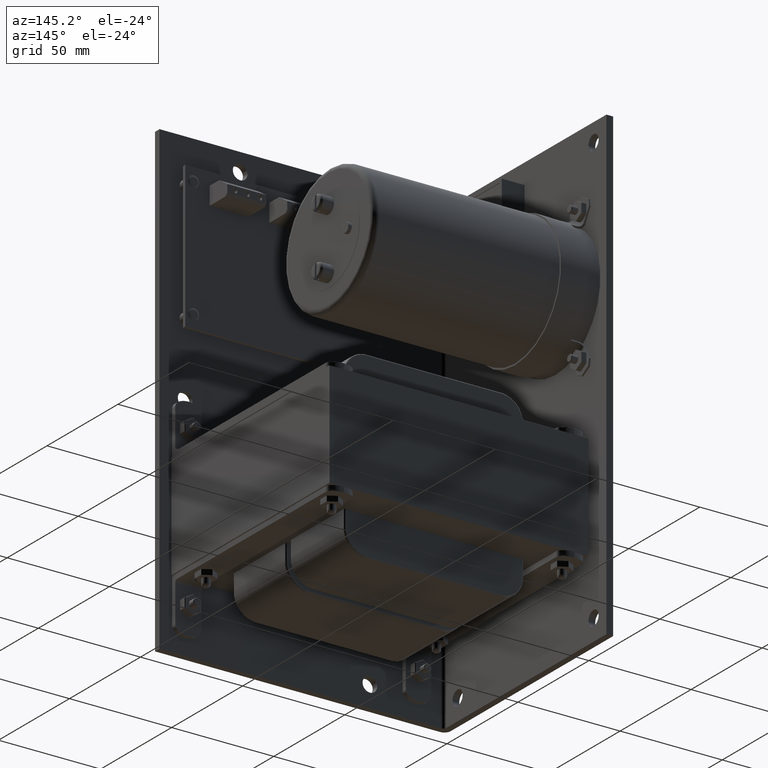
[diagram: clean part render]
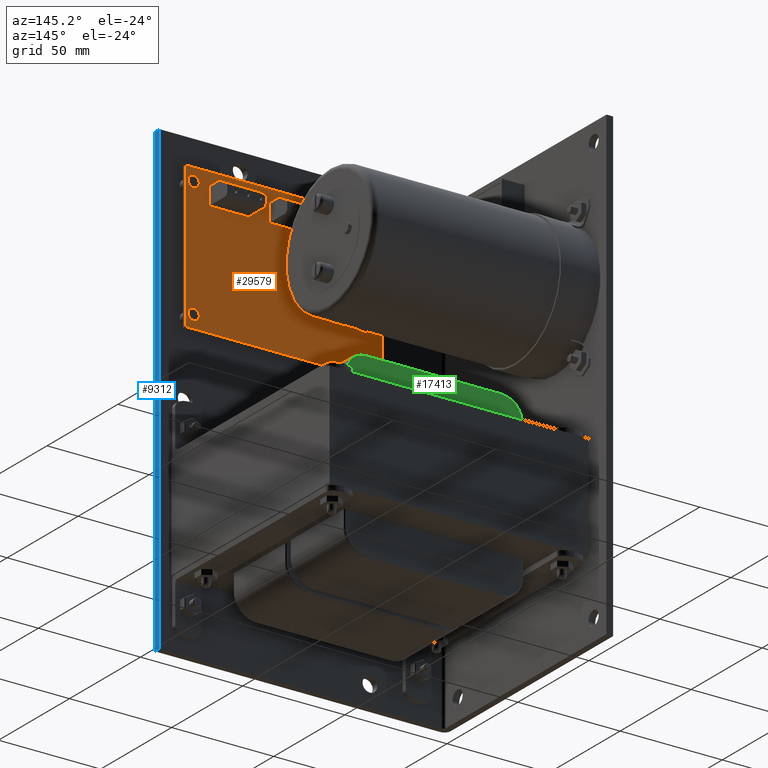
[diagram: same view with three faces highlighted in distinct colors, each labeled with its STEP entity id]
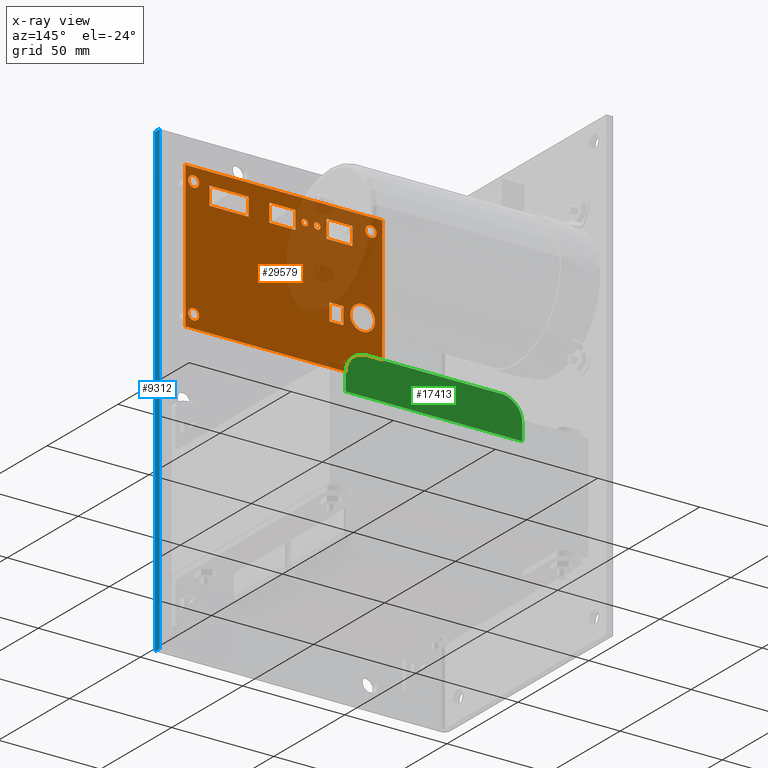
[diagram: x-ray of the same camera — body ghosted, the three highlighted faces saturated]
A machine part, auxiliary view with three faces highlighted in distinct colors.
The next image is the same camera in x-ray (body ghosted, the three faces saturated) — at least one of them is partly hidden behind the body in this view.
Their STEP definitions:

[orange] entity #29579 — the highlighted planar face has unit normal (0, -1, 0).
#168 = VECTOR ( 'NONE', #3664, 39.37007874015748100 ) ;
#216 = EDGE_CURVE ( 'NONE', #23354, #17459, #22473, .T. ) ;
#233 = CARTESIAN_POINT ( 'NONE',  ( 2.567108000741215700, 0.3562500000000000100, 3.289144323610568400 ) ) ;
#241 = CARTESIAN_POINT ( 'NONE',  ( 2.499454793884987100, 0.3562500000000000700, 2.189873202848102700 ) ) ;
#444 = CARTESIAN_POINT ( 'NONE',  ( 5.126889999999986200, 0.3562500000000000100, 3.630000000000000300 ) ) ;
#509 = FACE_BOUND ( 'NONE', #17495, .T. ) ;
#732 = CIRCLE ( 'NONE', #17499, 0.2403210120384025900 ) ;
#738 = CARTESIAN_POINT ( 'NONE',  ( 5.126889999999986200, 0.3562500000000000100, 1.330000000000000300 ) ) ;
#750 = ORIENTED_EDGE ( 'NONE', *, *, #15164, .F. ) ;
#814 = EDGE_LOOP ( 'NONE', ( #14510, #21212, #28279, #30144 ) ) ;
#828 = EDGE_CURVE ( 'NONE', #20476, #13117, #20589, .T. ) ;
#842 = CARTESIAN_POINT ( 'NONE',  ( 2.499454793884987100, 0.3562500000000000100, 2.202373202848102500 ) ) ;
#864 = DIRECTION ( 'NONE',  ( 1.000000000000000000, 0.0000000000000000000, 0.0000000000000000000 ) ) ;
#893 = CIRCLE ( 'NONE', #22451, 0.01249999999999993500 ) ;
#897 = ORIENTED_EDGE ( 'NONE', *, *, #25191, .F. ) ;
#973 = VERTEX_POINT ( 'NONE', #17518 ) ;
#1085 = EDGE_CURVE ( 'NONE', #23833, #8185, #2347, .T. ) ;
#1155 = CARTESIAN_POINT ( 'NONE',  ( 4.820850972474547200, 0.3562500000000000100, 3.635920434602855500 ) ) ;
#1189 = DIRECTION ( 'NONE',  ( 0.0000000000000000000, 0.0000000000000000000, 1.000000000000000000 ) ) ;
#1247 = VECTOR ( 'NONE', #13639, 39.37007874015748100 ) ;
#1420 = CIRCLE ( 'NONE', #23116, 0.06126911402117980700 ) ;
#1451 = DIRECTION ( 'NONE',  ( 0.0000000000000000000, 0.0000000000000000000, 1.000000000000000000 ) ) ;
#1540 = VERTEX_POINT ( 'NONE', #20874 ) ;
#1602 = CARTESIAN_POINT ( 'NONE',  ( 5.290116121888329000, 0.3562500000000000100, 1.080000000000013200 ) ) ;
#1756 = AXIS2_PLACEMENT_3D ( 'NONE', #11828, #14503, #9560 ) ;
#1871 = CARTESIAN_POINT ( 'NONE',  ( 5.126889999999986200, 0.3562500000000000100, 3.630000000000000300 ) ) ;
#2021 = VERTEX_POINT ( 'NONE', #18220 ) ;
#2115 = EDGE_LOOP ( 'NONE', ( #5764, #11329, #23982, #11856, #13220, #16406, #16074, #3858 ) ) ;
#2205 = EDGE_CURVE ( 'NONE', #9322, #4351, #11475, .T. ) ;
#2283 = VERTEX_POINT ( 'NONE', #5282 ) ;
#2341 = FACE_BOUND ( 'NONE', #2115, .T. ) ;
#2347 = CIRCLE ( 'NONE', #16882, 0.1065000000000017200 ) ;
#2394 = DIRECTION ( 'NONE',  ( 0.0000000000000000000, -1.000000000000000000, 0.0000000000000000000 ) ) ;
#2457 = EDGE_LOOP ( 'NONE', ( #27822, #21044 ) ) ;
#2607 = CIRCLE ( 'NONE', #17798, 0.1065000000000017200 ) ;
#2628 = DIRECTION ( 'NONE',  ( 0.0000000000000000000, -1.000000000000000000, 0.0000000000000000000 ) ) ;
#2684 = LINE ( 'NONE', #17862, #20898 ) ;
#2772 = EDGE_CURVE ( 'NONE', #8289, #16735, #11407, .T. ) ;
#2793 = DIRECTION ( 'NONE',  ( 0.0000000000000000000, 0.0000000000000000000, -1.000000000000000000 ) ) ;
#2822 = CARTESIAN_POINT ( 'NONE',  ( 5.290116121888329000, 0.3562500000000000100, 1.080000000000013200 ) ) ;
#2856 = CIRCLE ( 'NONE', #29399, 0.1065000000000022600 ) ;
#3000 = VERTEX_POINT ( 'NONE', #17538 ) ;
#3088 = DIRECTION ( 'NONE',  ( -0.0000000000000000000, 1.000000000000000000, -0.0000000000000000000 ) ) ;
#3273 = EDGE_LOOP ( 'NONE', ( #19516, #9786 ) ) ;
#3312 = VECTOR ( 'NONE', #16762, 39.37007874015748100 ) ;
#3448 = FACE_BOUND ( 'NONE', #17003, .T. ) ;
#3461 = VECTOR ( 'NONE', #29570, 39.37007874015748100 ) ;
#3479 = ORIENTED_EDGE ( 'NONE', *, *, #16588, .F. ) ;
#3659 = EDGE_LOOP ( 'NONE', ( #19423, #897, #29071, #23502 ) ) ;
#3664 = DIRECTION ( 'NONE',  ( 6.302274942405048000E-015, 0.0000000000000000000, 1.000000000000000000 ) ) ;
#3727 = CARTESIAN_POINT ( 'NONE',  ( 2.243411818852810500, 0.3562500000000000100, 1.873179531436004200 ) ) ;
#3740 = LINE ( 'NONE', #29790, #7739 ) ;
#3768 = CARTESIAN_POINT ( 'NONE',  ( 3.167108000741191400, 0.3562500000000000100, -1.995998539296175500E-014 ) ) ;
#3858 = ORIENTED_EDGE ( 'NONE', *, *, #20272, .T. ) ;
#4002 = LINE ( 'NONE', #21353, #3312 ) ;
#4062 = DIRECTION ( 'NONE',  ( 0.0000000000000000000, 0.0000000000000000000, 1.000000000000000000 ) ) ;
#4151 = VERTEX_POINT ( 'NONE', #1602 ) ;
#4226 = AXIS2_PLACEMENT_3D ( 'NONE', #9223, #2394, #14067 ) ;
#4237 = DIRECTION ( 'NONE',  ( 0.0000000000000000000, 0.0000000000000000000, 1.000000000000000000 ) ) ;
#4305 = DIRECTION ( 'NONE',  ( 1.000000000000000000, 0.0000000000000000000, -3.174556836678934100E-015 ) ) ;
#4351 = VERTEX_POINT ( 'NONE', #27893 ) ;
#4404 = CARTESIAN_POINT ( 'NONE',  ( 4.067108000741213500, 0.3562500000000000100, 3.635920434602857700 ) ) ;
#4451 = DIRECTION ( 'NONE',  ( -0.0000000000000000000, -1.000000000000000000, 0.0000000000000000000 ) ) ;
#4737 = CARTESIAN_POINT ( 'NONE',  ( 5.126889999999986200, 0.3562500000000000100, 1.223499999999998000 ) ) ;
#4916 = CARTESIAN_POINT ( 'NONE',  ( 1.490116121888331000, 0.3562500000000000100, 1.080000000000013200 ) ) ;
#4985 = ORIENTED_EDGE ( 'NONE', *, *, #5076, .T. ) ;
#5076 = EDGE_CURVE ( 'NONE', #20987, #18467, #10486, .T. ) ;
#5147 = DIRECTION ( 'NONE',  ( -0.0000000000000000000, 1.000000000000000000, -0.0000000000000000000 ) ) ;
#5210 = ORIENTED_EDGE ( 'NONE', *, *, #11740, .T. ) ;
#5226 = CARTESIAN_POINT ( 'NONE',  ( 2.747108000741215000, 0.3562500000000000100, 3.401263265085536300 ) ) ;
#5282 = CARTESIAN_POINT ( 'NONE',  ( 5.290116121888329000, 0.3562500000000000100, 3.880000000000011400 ) ) ;
#5339 = AXIS2_PLACEMENT_3D ( 'NONE', #25099, #4451, #20725 ) ;
#5354 = LINE ( 'NONE', #2822, #29328 ) ;
#5396 = VERTEX_POINT ( 'NONE', #19142 ) ;
#5510 = LINE ( 'NONE', #7024, #27228 ) ;
#5764 = ORIENTED_EDGE ( 'NONE', *, *, #10665, .F. ) ;
#5887 = CARTESIAN_POINT ( 'NONE',  ( 4.820850972474524100, 0.3562500000000000100, -3.038232828489520000E-014 ) ) ;
#5904 = AXIS2_PLACEMENT_3D ( 'NONE', #30114, #21066, #16300 ) ;
#6046 = CARTESIAN_POINT ( 'NONE',  ( 2.747108000741215000, 0.3562500000000000100, 3.462532379106714900 ) ) ;
#6237 = CARTESIAN_POINT ( 'NONE',  ( 2.747108000741215000, 0.3562500000000000100, 3.523801493127893400 ) ) ;
#6529 = CARTESIAN_POINT ( 'NONE',  ( 2.243411818852810500, 0.3562500000000000100, 2.202373202848102500 ) ) ;
#6672 = EDGE_CURVE ( 'NONE', #18467, #20987, #9948, .T. ) ;
#6777 = CARTESIAN_POINT ( 'NONE',  ( 2.511954793884986900, 0.3562500000000000100, 2.189873202848102700 ) ) ;
#6849 = CIRCLE ( 'NONE', #4226, 0.01249999999999993500 ) ;
#6877 = VECTOR ( 'NONE', #12013, 39.37007874015748100 ) ;
#7024 = CARTESIAN_POINT ( 'NONE',  ( 1.109417407430052700E-014, 0.3562500000000000100, 3.289144323610576800 ) ) ;
#7113 = EDGE_CURVE ( 'NONE', #8185, #23833, #2607, .T. ) ;
#7332 = ORIENTED_EDGE ( 'NONE', *, *, #14700, .T. ) ;
#7739 = VECTOR ( 'NONE', #13438, 39.37007874015748100 ) ;
#8097 = LINE ( 'NONE', #14678, #23366 ) ;
#8123 = DIRECTION ( 'NONE',  ( 0.0000000000000000000, -1.000000000000000000, 0.0000000000000000000 ) ) ;
#8185 = VERTEX_POINT ( 'NONE', #20326 ) ;
#8289 = VERTEX_POINT ( 'NONE', #29149 ) ;
#8527 = LINE ( 'NONE', #3727, #10760 ) ;
#8689 = ORIENTED_EDGE ( 'NONE', *, *, #13391, .T. ) ;
#9223 = CARTESIAN_POINT ( 'NONE',  ( 2.255911818852810700, 0.3562500000000000700, 1.885679531436004000 ) ) ;
#9270 = FACE_BOUND ( 'NONE', #814, .T. ) ;
#9322 = VERTEX_POINT ( 'NONE', #17434 ) ;
#9543 = EDGE_CURVE ( 'NONE', #14572, #21831, #3740, .T. ) ;
#9560 = DIRECTION ( 'NONE',  ( 0.0000000000000000000, 0.0000000000000000000, -1.000000000000000000 ) ) ;
#9643 = CARTESIAN_POINT ( 'NONE',  ( 1.870870562920248900, 0.3562500000000000700, 2.094269394781242100 ) ) ;
#9654 = FACE_BOUND ( 'NONE', #25899, .T. ) ;
#9702 = CIRCLE ( 'NONE', #23156, 0.06126911402117980700 ) ;
#9711 = AXIS2_PLACEMENT_3D ( 'NONE', #9643, #5147, #21716 ) ;
#9730 = CIRCLE ( 'NONE', #14566, 0.1065000000000022600 ) ;
#9786 = ORIENTED_EDGE ( 'NONE', *, *, #11528, .F. ) ;
#9948 = CIRCLE ( 'NONE', #5339, 0.06126911402117871800 ) ;
#10026 = VECTOR ( 'NONE', #24482, 39.37007874015748100 ) ;
#10044 = DIRECTION ( 'NONE',  ( -0.0000000000000000000, 0.0000000000000000000, 1.000000000000000000 ) ) ;
#10261 = LINE ( 'NONE', #22062, #25844 ) ;
#10392 = ORIENTED_EDGE ( 'NONE', *, *, #21760, .T. ) ;
#10406 = FACE_OUTER_BOUND ( 'NONE', #13384, .T. ) ;
#10407 = VERTEX_POINT ( 'NONE', #15883 ) ;
#10486 = CIRCLE ( 'NONE', #11699, 0.06126911402117871800 ) ;
#10529 = CARTESIAN_POINT ( 'NONE',  ( 3.667108000741191400, 0.3562500000000000100, -2.311112286416428200E-014 ) ) ;
#10544 = VERTEX_POINT ( 'NONE', #18236 ) ;
#10582 = EDGE_CURVE ( 'NONE', #12309, #10407, #5510, .T. ) ;
#10585 = CARTESIAN_POINT ( 'NONE',  ( 1.870870562920248900, 0.3562500000000000700, 1.853948382742839600 ) ) ;
#10662 = CARTESIAN_POINT ( 'NONE',  ( 1.109417407430052700E-014, 0.3562500000000000100, 3.289144323610576800 ) ) ;
#10665 = EDGE_CURVE ( 'NONE', #23354, #26648, #4002, .T. ) ;
#10725 = CARTESIAN_POINT ( 'NONE',  ( 0.0000000000000000000, 0.3562500000000000100, 0.0000000000000000000 ) ) ;
#10758 = FACE_BOUND ( 'NONE', #22270, .T. ) ;
#10760 = VECTOR ( 'NONE', #4237, 39.37007874015748100 ) ;
#10775 = CARTESIAN_POINT ( 'NONE',  ( 1.710688108957310900, 0.3562500000000000100, 3.630000000000000300 ) ) ;
#10866 = DIRECTION ( 'NONE',  ( 0.0000000000000000000, 0.0000000000000000000, -1.000000000000000000 ) ) ;
#11062 = DIRECTION ( 'NONE',  ( 0.0000000000000000000, 0.0000000000000000000, -1.000000000000000000 ) ) ;
#11074 = VECTOR ( 'NONE', #11247, 39.37007874015748100 ) ;
#11231 = LINE ( 'NONE', #10662, #14447 ) ;
#11247 = DIRECTION ( 'NONE',  ( 1.000000000000000000, 0.0000000000000000000, 0.0000000000000000000 ) ) ;
#11329 = ORIENTED_EDGE ( 'NONE', *, *, #216, .T. ) ;
#11344 = LINE ( 'NONE', #20775, #16391 ) ;
#11392 = CARTESIAN_POINT ( 'NONE',  ( 5.126889999999986200, 0.3562500000000000100, 1.436500000000002600 ) ) ;
#11407 = CIRCLE ( 'NONE', #19281, 0.1065000000000022600 ) ;
#11475 = CIRCLE ( 'NONE', #17715, 0.01249999999999993500 ) ;
#11528 = EDGE_CURVE ( 'NONE', #16735, #8289, #2856, .T. ) ;
#11531 = CARTESIAN_POINT ( 'NONE',  ( 1.870870562920248900, 0.3562500000000000700, 2.334590406819645000 ) ) ;
#11575 = DIRECTION ( 'NONE',  ( 9.756599977372373600E-017, 0.0000000000000000000, 1.000000000000000000 ) ) ;
#11699 = AXIS2_PLACEMENT_3D ( 'NONE', #6046, #24641, #1451 ) ;
#11713 = CARTESIAN_POINT ( 'NONE',  ( 5.126889999999986200, 0.3562500000000000100, 3.736500000000003000 ) ) ;
#11740 = EDGE_CURVE ( 'NONE', #23159, #3000, #21038, .T. ) ;
#11763 = CARTESIAN_POINT ( 'NONE',  ( 3.167108000741213100, 0.3562500000000000100, 3.635920434602860900 ) ) ;
#11828 = CARTESIAN_POINT ( 'NONE',  ( 5.126889999999986200, 0.3562500000000000100, 1.330000000000000300 ) ) ;
#11856 = ORIENTED_EDGE ( 'NONE', *, *, #2205, .T. ) ;
#12013 = DIRECTION ( 'NONE',  ( -1.000000000000000000, -0.0000000000000000000, -0.0000000000000000000 ) ) ;
#12057 = VERTEX_POINT ( 'NONE', #29385 ) ;
#12309 = VERTEX_POINT ( 'NONE', #28617 ) ;
#12440 = VERTEX_POINT ( 'NONE', #15013 ) ;
#12620 = ORIENTED_EDGE ( 'NONE', *, *, #15944, .F. ) ;
#12809 = DIRECTION ( 'NONE',  ( -0.0000000000000000000, 1.000000000000000000, -0.0000000000000000000 ) ) ;
#12884 = CARTESIAN_POINT ( 'NONE',  ( 2.987108000741213400, 0.3562500000000000100, 3.462532379106714900 ) ) ;
#13007 = DIRECTION ( 'NONE',  ( 0.0000000000000000000, 0.0000000000000000000, -1.000000000000000000 ) ) ;
#13117 = VERTEX_POINT ( 'NONE', #11531 ) ;
#13220 = ORIENTED_EDGE ( 'NONE', *, *, #13994, .F. ) ;
#13241 = EDGE_CURVE ( 'NONE', #4151, #2283, #5354, .T. ) ;
#13356 = DIRECTION ( 'NONE',  ( -0.0000000000000000000, 1.000000000000000000, -0.0000000000000000000 ) ) ;
#13384 = EDGE_LOOP ( 'NONE', ( #3479, #5210, #10392, #19519 ) ) ;
#13391 = EDGE_CURVE ( 'NONE', #12057, #28193, #9702, .T. ) ;
#13438 = DIRECTION ( 'NONE',  ( 1.000000000000000000, 0.0000000000000000000, -3.174556836678934100E-015 ) ) ;
#13477 = CARTESIAN_POINT ( 'NONE',  ( 2.987108000741213400, 0.3562500000000000100, 3.523801493127894700 ) ) ;
#13579 = DIRECTION ( 'NONE',  ( 6.302274942405066900E-015, 0.0000000000000000000, 1.000000000000000000 ) ) ;
#13639 = DIRECTION ( 'NONE',  ( -1.000000000000000000, 0.0000000000000000000, 3.372966638971370200E-015 ) ) ;
#13829 = VERTEX_POINT ( 'NONE', #15407 ) ;
#13898 = EDGE_CURVE ( 'NONE', #10407, #14572, #2684, .T. ) ;
#13944 = AXIS2_PLACEMENT_3D ( 'NONE', #241, #21487, #17319 ) ;
#13961 = FACE_BOUND ( 'NONE', #3659, .T. ) ;
#13994 = EDGE_CURVE ( 'NONE', #13829, #4351, #8527, .T. ) ;
#14036 = VERTEX_POINT ( 'NONE', #27349 ) ;
#14067 = DIRECTION ( 'NONE',  ( 0.0000000000000000000, 0.0000000000000000000, -1.000000000000000000 ) ) ;
#14289 = VERTEX_POINT ( 'NONE', #21499 ) ;
#14309 = DIRECTION ( 'NONE',  ( 0.0000000000000000000, 0.0000000000000000000, 1.000000000000000000 ) ) ;
#14323 = ORIENTED_EDGE ( 'NONE', *, *, #15815, .F. ) ;
#14447 = VECTOR ( 'NONE', #17546, 39.37007874015748100 ) ;
#14481 = EDGE_CURVE ( 'NONE', #9322, #17459, #18360, .T. ) ;
#14503 = DIRECTION ( 'NONE',  ( -0.0000000000000000000, 1.000000000000000000, -0.0000000000000000000 ) ) ;
#14510 = ORIENTED_EDGE ( 'NONE', *, *, #21101, .F. ) ;
#14566 = AXIS2_PLACEMENT_3D ( 'NONE', #738, #3088, #23838 ) ;
#14572 = VERTEX_POINT ( 'NONE', #4404 ) ;
#14678 = CARTESIAN_POINT ( 'NONE',  ( 1.490116121888331200, 0.3562500000000000100, 3.880000000000011400 ) ) ;
#14700 = EDGE_CURVE ( 'NONE', #5396, #12440, #17589, .T. ) ;
#14836 = DIRECTION ( 'NONE',  ( 0.0000000000000000000, 0.0000000000000000000, -1.000000000000000000 ) ) ;
#15013 = CARTESIAN_POINT ( 'NONE',  ( 3.667108000741214500, 0.3562500000000000100, 3.635920434602859100 ) ) ;
#15115 = DIRECTION ( 'NONE',  ( -0.0000000000000000000, -1.000000000000000000, 0.0000000000000000000 ) ) ;
#15164 = EDGE_CURVE ( 'NONE', #21531, #23348, #28069, .T. ) ;
#15244 = ORIENTED_EDGE ( 'NONE', *, *, #6672, .T. ) ;
#15407 = CARTESIAN_POINT ( 'NONE',  ( 2.243411818852810500, 0.3562500000000000100, 1.885679531436004000 ) ) ;
#15525 = CARTESIAN_POINT ( 'NONE',  ( 1.490116121888331000, 0.3562500000000000100, 1.080000000000013200 ) ) ;
#15560 = DIRECTION ( 'NONE',  ( -0.0000000000000000000, 1.000000000000000000, -0.0000000000000000000 ) ) ;
#15815 = EDGE_CURVE ( 'NONE', #13117, #20476, #732, .T. ) ;
#15883 = CARTESIAN_POINT ( 'NONE',  ( 4.067108000741212600, 0.3562500000000000100, 3.289144323610563500 ) ) ;
#15944 = EDGE_CURVE ( 'NONE', #22145, #22149, #16557, .T. ) ;
#16074 = ORIENTED_EDGE ( 'NONE', *, *, #27826, .F. ) ;
#16087 = ORIENTED_EDGE ( 'NONE', *, *, #29191, .F. ) ;
#16188 = LINE ( 'NONE', #5887, #10026 ) ;
#16300 = DIRECTION ( 'NONE',  ( 0.0000000000000000000, 0.0000000000000000000, -1.000000000000000000 ) ) ;
#16333 = CARTESIAN_POINT ( 'NONE',  ( 2.567108000741193900, 0.3562500000000000100, -1.617862042751879400E-014 ) ) ;
#16391 = VECTOR ( 'NONE', #4305, 39.37007874015748100 ) ;
#16406 = ORIENTED_EDGE ( 'NONE', *, *, #23827, .T. ) ;
#16557 = LINE ( 'NONE', #3768, #168 ) ;
#16588 = EDGE_CURVE ( 'NONE', #23159, #4151, #10261, .T. ) ;
#16716 = DIRECTION ( 'NONE',  ( -0.0000000000000000000, 1.000000000000000000, -0.0000000000000000000 ) ) ;
#16721 = ORIENTED_EDGE ( 'NONE', *, *, #19872, .F. ) ;
#16735 = VERTEX_POINT ( 'NONE', #11713 ) ;
#16762 = DIRECTION ( 'NONE',  ( -0.0000000000000000000, -0.0000000000000000000, -1.000000000000000000 ) ) ;
#16882 = AXIS2_PLACEMENT_3D ( 'NONE', #18018, #15560, #18330 ) ;
#16974 = ORIENTED_EDGE ( 'NONE', *, *, #28513, .F. ) ;
#17003 = EDGE_LOOP ( 'NONE', ( #23262, #7332, #16721, #12620 ) ) ;
#17241 = LINE ( 'NONE', #20862, #1247 ) ;
#17273 = LINE ( 'NONE', #16333, #26684 ) ;
#17319 = DIRECTION ( 'NONE',  ( 0.0000000000000000000, 0.0000000000000000000, -1.000000000000000000 ) ) ;
#17409 = DIRECTION ( 'NONE',  ( 6.302274942405048000E-015, 0.0000000000000000000, 1.000000000000000000 ) ) ;
#17434 = CARTESIAN_POINT ( 'NONE',  ( 2.255911818852810700, 0.3562500000000000100, 2.202373202848102500 ) ) ;
#17459 = VERTEX_POINT ( 'NONE', #842 ) ;
#17495 = EDGE_LOOP ( 'NONE', ( #29240, #750 ) ) ;
#17499 = AXIS2_PLACEMENT_3D ( 'NONE', #28862, #28754, #14836 ) ;
#17518 = CARTESIAN_POINT ( 'NONE',  ( 2.067108000000000600, 0.3562500000000000100, 3.289144323610569700 ) ) ;
#17538 = CARTESIAN_POINT ( 'NONE',  ( 1.490116121888331200, 0.3562500000000000100, 3.880000000000011400 ) ) ;
#17546 = DIRECTION ( 'NONE',  ( -1.000000000000000000, 0.0000000000000000000, 3.372966638971370200E-015 ) ) ;
#17589 = LINE ( 'NONE', #10529, #29203 ) ;
#17652 = LINE ( 'NONE', #20542, #3461 ) ;
#17715 = AXIS2_PLACEMENT_3D ( 'NONE', #27810, #2628, #21235 ) ;
#17798 = AXIS2_PLACEMENT_3D ( 'NONE', #10775, #13356, #10866 ) ;
#17862 = CARTESIAN_POINT ( 'NONE',  ( 4.067108000741191300, 0.3562500000000000100, -2.563203284112629800E-014 ) ) ;
#17901 = DIRECTION ( 'NONE',  ( 0.0000000000000000000, -0.0000000000000000000, -1.000000000000000000 ) ) ;
#18018 = CARTESIAN_POINT ( 'NONE',  ( 1.710688108957310900, 0.3562500000000000100, 3.630000000000000300 ) ) ;
#18054 = VERTEX_POINT ( 'NONE', #28744 ) ;
#18159 = DIRECTION ( 'NONE',  ( -0.0000000000000000000, 1.000000000000000000, -0.0000000000000000000 ) ) ;
#18220 = CARTESIAN_POINT ( 'NONE',  ( 1.710688108957310900, 0.3562500000000000100, 1.436500000000001400 ) ) ;
#18236 = CARTESIAN_POINT ( 'NONE',  ( 2.567108000741215700, 0.3562500000000000100, 3.635920434602862600 ) ) ;
#18330 = DIRECTION ( 'NONE',  ( 0.0000000000000000000, 0.0000000000000000000, -1.000000000000000000 ) ) ;
#18360 = LINE ( 'NONE', #6529, #11074 ) ;
#18467 = VERTEX_POINT ( 'NONE', #5226 ) ;
#18537 = DIRECTION ( 'NONE',  ( -1.000000000000000000, 0.0000000000000000000, 3.372966638971370200E-015 ) ) ;
#19109 = EDGE_CURVE ( 'NONE', #23348, #21531, #9730, .T. ) ;
#19133 = CIRCLE ( 'NONE', #5904, 0.1065000000000011800 ) ;
#19142 = CARTESIAN_POINT ( 'NONE',  ( 3.667108000741213100, 0.3562500000000000100, 3.289144323610564400 ) ) ;
#19167 = CIRCLE ( 'NONE', #24392, 0.1065000000000011800 ) ;
#19261 = LINE ( 'NONE', #25799, #6877 ) ;
#19281 = AXIS2_PLACEMENT_3D ( 'NONE', #444, #16716, #2793 ) ;
#19423 = ORIENTED_EDGE ( 'NONE', *, *, #10582, .F. ) ;
#19443 = DIRECTION ( 'NONE',  ( 1.000000000000000000, 0.0000000000000000000, 0.0000000000000000000 ) ) ;
#19516 = ORIENTED_EDGE ( 'NONE', *, *, #2772, .F. ) ;
#19519 = ORIENTED_EDGE ( 'NONE', *, *, #13241, .F. ) ;
#19872 = EDGE_CURVE ( 'NONE', #22149, #12440, #17652, .T. ) ;
#19946 = CARTESIAN_POINT ( 'NONE',  ( 1.710688108957310900, 0.3562500000000000100, 1.330000000000000300 ) ) ;
#19952 = DIRECTION ( 'NONE',  ( 0.0000000000000000000, -1.000000000000000000, 0.0000000000000000000 ) ) ;
#20153 = ORIENTED_EDGE ( 'NONE', *, *, #828, .F. ) ;
#20272 = EDGE_CURVE ( 'NONE', #14036, #26648, #893, .T. ) ;
#20326 = CARTESIAN_POINT ( 'NONE',  ( 1.710688108957310900, 0.3562500000000000100, 3.523499999999998500 ) ) ;
#20328 = VECTOR ( 'NONE', #11575, 39.37007874015748100 ) ;
#20476 = VERTEX_POINT ( 'NONE', #10585 ) ;
#20542 = CARTESIAN_POINT ( 'NONE',  ( 1.154243607328918300E-014, 0.3562500000000000100, 3.635920434602870600 ) ) ;
#20589 = CIRCLE ( 'NONE', #9711, 0.2403210120384025900 ) ;
#20725 = DIRECTION ( 'NONE',  ( 0.0000000000000000000, 0.0000000000000000000, 1.000000000000000000 ) ) ;
#20775 = CARTESIAN_POINT ( 'NONE',  ( 1.154243607328918300E-014, 0.3562500000000000100, 3.635920434602870600 ) ) ;
#20862 = CARTESIAN_POINT ( 'NONE',  ( 1.109417407430052700E-014, 0.3562500000000000100, 3.289144323610576800 ) ) ;
#20874 = CARTESIAN_POINT ( 'NONE',  ( 2.255911818852810700, 0.3562500000000000100, 1.873179531436004200 ) ) ;
#20895 = FACE_BOUND ( 'NONE', #25348, .T. ) ;
#20898 = VECTOR ( 'NONE', #22545, 39.37007874015748100 ) ;
#20987 = VERTEX_POINT ( 'NONE', #6237 ) ;
#21038 = LINE ( 'NONE', #4916, #20328 ) ;
#21044 = ORIENTED_EDGE ( 'NONE', *, *, #1085, .F. ) ;
#21066 = DIRECTION ( 'NONE',  ( -0.0000000000000000000, 1.000000000000000000, -0.0000000000000000000 ) ) ;
#21101 = EDGE_CURVE ( 'NONE', #22095, #973, #17241, .T. ) ;
#21212 = ORIENTED_EDGE ( 'NONE', *, *, #25479, .T. ) ;
#21235 = DIRECTION ( 'NONE',  ( 0.0000000000000000000, 0.0000000000000000000, -1.000000000000000000 ) ) ;
#21353 = CARTESIAN_POINT ( 'NONE',  ( 2.511954793884986900, 0.3562500000000000100, 1.873179531436004200 ) ) ;
#21487 = DIRECTION ( 'NONE',  ( 0.0000000000000000000, -1.000000000000000000, 0.0000000000000000000 ) ) ;
#21499 = CARTESIAN_POINT ( 'NONE',  ( 2.067108000000000600, 0.3562500000000000100, 3.635920434602864000 ) ) ;
#21531 = VERTEX_POINT ( 'NONE', #11392 ) ;
#21716 = DIRECTION ( 'NONE',  ( 0.0000000000000000000, 0.0000000000000000000, -1.000000000000000000 ) ) ;
#21760 = EDGE_CURVE ( 'NONE', #3000, #2283, #8097, .T. ) ;
#21831 = VERTEX_POINT ( 'NONE', #1155 ) ;
#21852 = DIRECTION ( 'NONE',  ( 0.0000000000000000000, 0.0000000000000000000, -1.000000000000000000 ) ) ;
#22040 = CARTESIAN_POINT ( 'NONE',  ( 2.499454793884987100, 0.3562500000000000700, 1.885679531436004000 ) ) ;
#22062 = CARTESIAN_POINT ( 'NONE',  ( 1.490116121888331000, 0.3562500000000000100, 1.080000000000013200 ) ) ;
#22095 = VERTEX_POINT ( 'NONE', #233 ) ;
#22145 = VERTEX_POINT ( 'NONE', #28143 ) ;
#22149 = VERTEX_POINT ( 'NONE', #11763 ) ;
#22270 = EDGE_LOOP ( 'NONE', ( #15244, #4985 ) ) ;
#22383 = PLANE ( 'NONE',  #27261 ) ;
#22451 = AXIS2_PLACEMENT_3D ( 'NONE', #22040, #8123, #21852 ) ;
#22473 = CIRCLE ( 'NONE', #13944, 0.01249999999999993500 ) ;
#22545 = DIRECTION ( 'NONE',  ( 6.302274942405048000E-015, 0.0000000000000000000, 1.000000000000000000 ) ) ;
#22780 = CARTESIAN_POINT ( 'NONE',  ( 2.987108000741213400, 0.3562500000000000100, 3.462532379106714900 ) ) ;
#23059 = EDGE_CURVE ( 'NONE', #28193, #12057, #1420, .T. ) ;
#23116 = AXIS2_PLACEMENT_3D ( 'NONE', #12884, #15115, #1189 ) ;
#23156 = AXIS2_PLACEMENT_3D ( 'NONE', #22780, #29766, #4062 ) ;
#23159 = VERTEX_POINT ( 'NONE', #15525 ) ;
#23241 = CARTESIAN_POINT ( 'NONE',  ( 1.710688108957310900, 0.3562500000000000100, 3.736500000000002200 ) ) ;
#23262 = ORIENTED_EDGE ( 'NONE', *, *, #24128, .F. ) ;
#23348 = VERTEX_POINT ( 'NONE', #4737 ) ;
#23354 = VERTEX_POINT ( 'NONE', #6777 ) ;
#23366 = VECTOR ( 'NONE', #864, 39.37007874015748100 ) ;
#23482 = EDGE_LOOP ( 'NONE', ( #8689, #30051 ) ) ;
#23502 = ORIENTED_EDGE ( 'NONE', *, *, #13898, .F. ) ;
#23827 = EDGE_CURVE ( 'NONE', #13829, #1540, #6849, .T. ) ;
#23833 = VERTEX_POINT ( 'NONE', #23241 ) ;
#23838 = DIRECTION ( 'NONE',  ( 0.0000000000000000000, 0.0000000000000000000, -1.000000000000000000 ) ) ;
#23982 = ORIENTED_EDGE ( 'NONE', *, *, #14481, .F. ) ;
#24128 = EDGE_CURVE ( 'NONE', #5396, #22145, #11231, .T. ) ;
#24392 = AXIS2_PLACEMENT_3D ( 'NONE', #19946, #12809, #13007 ) ;
#24482 = DIRECTION ( 'NONE',  ( -6.302274942405048000E-015, 0.0000000000000000000, -1.000000000000000000 ) ) ;
#24641 = DIRECTION ( 'NONE',  ( -0.0000000000000000000, -1.000000000000000000, 0.0000000000000000000 ) ) ;
#24807 = LINE ( 'NONE', #26458, #28402 ) ;
#25099 = CARTESIAN_POINT ( 'NONE',  ( 2.747108000741215000, 0.3562500000000000100, 3.462532379106714900 ) ) ;
#25191 = EDGE_CURVE ( 'NONE', #21831, #12309, #16188, .T. ) ;
#25265 = FACE_BOUND ( 'NONE', #3273, .T. ) ;
#25348 = EDGE_LOOP ( 'NONE', ( #20153, #14323 ) ) ;
#25479 = EDGE_CURVE ( 'NONE', #22095, #10544, #17273, .T. ) ;
#25749 = EDGE_CURVE ( 'NONE', #973, #14289, #24807, .T. ) ;
#25799 = CARTESIAN_POINT ( 'NONE',  ( 2.243411818852810500, 0.3562500000000000100, 1.873179531436004200 ) ) ;
#25844 = VECTOR ( 'NONE', #19443, 39.37007874015748100 ) ;
#25899 = EDGE_LOOP ( 'NONE', ( #16087, #16974 ) ) ;
#26458 = CARTESIAN_POINT ( 'NONE',  ( 2.067108000000000600, 0.3562500000000000100, 0.0000000000000000000 ) ) ;
#26648 = VERTEX_POINT ( 'NONE', #27662 ) ;
#26684 = VECTOR ( 'NONE', #13579, 39.37007874015748100 ) ;
#26996 = EDGE_CURVE ( 'NONE', #14289, #10544, #11344, .T. ) ;
#27228 = VECTOR ( 'NONE', #18537, 39.37007874015748100 ) ;
#27261 = AXIS2_PLACEMENT_3D ( 'NONE', #10725, #19952, #17901 ) ;
#27349 = CARTESIAN_POINT ( 'NONE',  ( 2.499454793884987100, 0.3562500000000000100, 1.873179531436004200 ) ) ;
#27662 = CARTESIAN_POINT ( 'NONE',  ( 2.511954793884986900, 0.3562500000000000100, 1.885679531436004000 ) ) ;
#27766 = FACE_BOUND ( 'NONE', #2457, .T. ) ;
#27810 = CARTESIAN_POINT ( 'NONE',  ( 2.255911818852810700, 0.3562500000000000700, 2.189873202848102700 ) ) ;
#27822 = ORIENTED_EDGE ( 'NONE', *, *, #7113, .F. ) ;
#27826 = EDGE_CURVE ( 'NONE', #14036, #1540, #19261, .T. ) ;
#27893 = CARTESIAN_POINT ( 'NONE',  ( 2.243411818852810500, 0.3562500000000000100, 2.189873202848102700 ) ) ;
#28069 = CIRCLE ( 'NONE', #1756, 0.1065000000000022600 ) ;
#28143 = CARTESIAN_POINT ( 'NONE',  ( 3.167108000741213100, 0.3562500000000000100, 3.289144323610566200 ) ) ;
#28193 = VERTEX_POINT ( 'NONE', #13477 ) ;
#28279 = ORIENTED_EDGE ( 'NONE', *, *, #26996, .F. ) ;
#28402 = VECTOR ( 'NONE', #10044, 39.37007874015748100 ) ;
#28483 = FACE_BOUND ( 'NONE', #23482, .T. ) ;
#28513 = EDGE_CURVE ( 'NONE', #2021, #18054, #19167, .T. ) ;
#28617 = CARTESIAN_POINT ( 'NONE',  ( 4.820850972474545400, 0.3562500000000000100, 3.289144323610560900 ) ) ;
#28744 = CARTESIAN_POINT ( 'NONE',  ( 1.710688108957310900, 0.3562500000000000100, 1.223499999999999100 ) ) ;
#28754 = DIRECTION ( 'NONE',  ( -0.0000000000000000000, 1.000000000000000000, -0.0000000000000000000 ) ) ;
#28862 = CARTESIAN_POINT ( 'NONE',  ( 1.870870562920248900, 0.3562500000000000700, 2.094269394781242100 ) ) ;
#29071 = ORIENTED_EDGE ( 'NONE', *, *, #9543, .F. ) ;
#29149 = CARTESIAN_POINT ( 'NONE',  ( 5.126889999999986200, 0.3562500000000000100, 3.523499999999997600 ) ) ;
#29191 = EDGE_CURVE ( 'NONE', #18054, #2021, #19133, .T. ) ;
#29203 = VECTOR ( 'NONE', #17409, 39.37007874015748100 ) ;
#29240 = ORIENTED_EDGE ( 'NONE', *, *, #19109, .F. ) ;
#29328 = VECTOR ( 'NONE', #14309, 39.37007874015748100 ) ;
#29385 = CARTESIAN_POINT ( 'NONE',  ( 2.987108000741213400, 0.3562500000000000100, 3.401263265085535000 ) ) ;
#29399 = AXIS2_PLACEMENT_3D ( 'NONE', #1871, #18159, #11062 ) ;
#29570 = DIRECTION ( 'NONE',  ( 1.000000000000000000, 0.0000000000000000000, -3.174556836678934100E-015 ) ) ;
#29579 = ADVANCED_FACE ( 'NONE', ( #13961, #10406, #25265, #509, #27766, #9654, #9270, #3448, #10758, #28483, #20895, #2341 ), #22383, .F. ) ;
#29766 = DIRECTION ( 'NONE',  ( -0.0000000000000000000, -1.000000000000000000, 0.0000000000000000000 ) ) ;
#29790 = CARTESIAN_POINT ( 'NONE',  ( 1.154243607328918300E-014, 0.3562500000000000100, 3.635920434602870600 ) ) ;
#30051 = ORIENTED_EDGE ( 'NONE', *, *, #23059, .T. ) ;
#30114 = CARTESIAN_POINT ( 'NONE',  ( 1.710688108957310900, 0.3562500000000000100, 1.330000000000000300 ) ) ;
#30144 = ORIENTED_EDGE ( 'NONE', *, *, #25749, .F. ) ;

[blue] entity #9312 — the highlighted planar face has unit normal (-1, 0, 0).
#646 = EDGE_CURVE ( 'NONE', #24523, #28301, #14390, .T. ) ;
#1726 = CARTESIAN_POINT ( 'NONE',  ( 5.619999999999999200, 0.1188192424177820200, -4.500000000000000000 ) ) ;
#1884 = CARTESIAN_POINT ( 'NONE',  ( 5.619999999999999200, -0.006180757582218904400, 4.500000000000000000 ) ) ;
#2104 = VERTEX_POINT ( 'NONE', #1726 ) ;
#2373 = ORIENTED_EDGE ( 'NONE', *, *, #646, .F. ) ;
#2383 = CARTESIAN_POINT ( 'NONE',  ( 5.619999999999999200, -0.006180757582218904400, -4.500000000000000000 ) ) ;
#3395 = CARTESIAN_POINT ( 'NONE',  ( 5.619999999999999200, -0.006180757582218904400, 4.500000000000000000 ) ) ;
#3809 = LINE ( 'NONE', #1884, #20899 ) ;
#4719 = DIRECTION ( 'NONE',  ( 0.0000000000000000000, 1.000000000000000000, 0.0000000000000000000 ) ) ;
#5718 = CARTESIAN_POINT ( 'NONE',  ( 5.619999999999999200, -0.006180757582218904400, 4.500000000000000000 ) ) ;
#6301 = VERTEX_POINT ( 'NONE', #19034 ) ;
#8899 = EDGE_CURVE ( 'NONE', #24523, #6301, #3809, .T. ) ;
#9312 = ADVANCED_FACE ( 'NONE', ( #16846 ), #14762, .F. ) ;
#9591 = CARTESIAN_POINT ( 'NONE',  ( 5.619999999999999200, 0.1188192424177820200, 4.500000000000000000 ) ) ;
#9934 = ORIENTED_EDGE ( 'NONE', *, *, #18390, .T. ) ;
#11234 = EDGE_CURVE ( 'NONE', #28301, #2104, #13062, .T. ) ;
#11925 = LINE ( 'NONE', #2383, #24980 ) ;
#13062 = LINE ( 'NONE', #23259, #26148 ) ;
#13727 = ORIENTED_EDGE ( 'NONE', *, *, #11234, .F. ) ;
#14390 = LINE ( 'NONE', #27034, #24959 ) ;
#14762 = PLANE ( 'NONE',  #28338 ) ;
#15069 = DIRECTION ( 'NONE',  ( 0.0000000000000000000, 0.0000000000000000000, 1.000000000000000000 ) ) ;
#15178 = EDGE_LOOP ( 'NONE', ( #9934, #13727, #2373, #24410 ) ) ;
#15286 = DIRECTION ( 'NONE',  ( 0.0000000000000000000, 1.000000000000000000, 0.0000000000000000000 ) ) ;
#16846 = FACE_OUTER_BOUND ( 'NONE', #15178, .T. ) ;
#18390 = EDGE_CURVE ( 'NONE', #6301, #2104, #11925, .T. ) ;
#19034 = CARTESIAN_POINT ( 'NONE',  ( 5.619999999999999200, -0.006180757582218904400, -4.500000000000000000 ) ) ;
#20899 = VECTOR ( 'NONE', #29922, 39.37007874015748100 ) ;
#23259 = CARTESIAN_POINT ( 'NONE',  ( 5.619999999999999200, 0.1188192424177820200, 4.500000000000000000 ) ) ;
#24410 = ORIENTED_EDGE ( 'NONE', *, *, #8899, .T. ) ;
#24523 = VERTEX_POINT ( 'NONE', #5718 ) ;
#24959 = VECTOR ( 'NONE', #15286, 39.37007874015748100 ) ;
#24980 = VECTOR ( 'NONE', #4719, 39.37007874015748100 ) ;
#25580 = DIRECTION ( 'NONE',  ( -0.0000000000000000000, -0.0000000000000000000, -1.000000000000000000 ) ) ;
#26148 = VECTOR ( 'NONE', #25580, 39.37007874015748100 ) ;
#27034 = CARTESIAN_POINT ( 'NONE',  ( 5.619999999999999200, -0.006180757582218904400, 4.500000000000000000 ) ) ;
#28301 = VERTEX_POINT ( 'NONE', #9591 ) ;
#28338 = AXIS2_PLACEMENT_3D ( 'NONE', #3395, #28996, #15069 ) ;
#28996 = DIRECTION ( 'NONE',  ( -1.000000000000000000, 0.0000000000000000000, 0.0000000000000000000 ) ) ;
#29922 = DIRECTION ( 'NONE',  ( -0.0000000000000000000, -0.0000000000000000000, -1.000000000000000000 ) ) ;

[green] entity #17413 — the highlighted planar face has unit normal (0, 1, -0).
#192 = VERTEX_POINT ( 'NONE', #23786 ) ;
#1038 = LINE ( 'NONE', #9150, #3234 ) ;
#2691 = VERTEX_POINT ( 'NONE', #27356 ) ;
#3155 = CARTESIAN_POINT ( 'NONE',  ( 1.610165357630620700, 3.825000000000000200, -0.8257337830373238100 ) ) ;
#3234 = VECTOR ( 'NONE', #16261, 39.37007874015748100 ) ;
#3514 = VECTOR ( 'NONE', #14756, 39.37007874015748100 ) ;
#5317 = VECTOR ( 'NONE', #20831, 39.37007874015748100 ) ;
#5422 = EDGE_CURVE ( 'NONE', #192, #15940, #15129, .T. ) ;
#5569 = ORIENTED_EDGE ( 'NONE', *, *, #18564, .T. ) ;
#5605 = DIRECTION ( 'NONE',  ( 0.0000000000000000000, 0.0000000000000000000, 1.000000000000000000 ) ) ;
#6141 = ORIENTED_EDGE ( 'NONE', *, *, #16493, .T. ) ;
#6444 = EDGE_CURVE ( 'NONE', #29232, #2691, #8506, .T. ) ;
#7466 = DIRECTION ( 'NONE',  ( 0.0000000000000000000, 0.0000000000000000000, 1.000000000000000000 ) ) ;
#8056 = AXIS2_PLACEMENT_3D ( 'NONE', #3155, #24412, #5605 ) ;
#8506 = CIRCLE ( 'NONE', #8056, 0.4063813753699218600 ) ;
#9150 = CARTESIAN_POINT ( 'NONE',  ( 0.0000000000000000000, 3.825000000000000200, -0.4207238890060394600 ) ) ;
#9378 = ORIENTED_EDGE ( 'NONE', *, *, #13470, .T. ) ;
#9742 = VERTEX_POINT ( 'NONE', #23910 ) ;
#10023 = CARTESIAN_POINT ( 'NONE',  ( 4.609670073821973800, 3.825000000000000200, 0.0000000000000000000 ) ) ;
#10084 = VERTEX_POINT ( 'NONE', #11623 ) ;
#10912 = ORIENTED_EDGE ( 'NONE', *, *, #5422, .T. ) ;
#11064 = AXIS2_PLACEMENT_3D ( 'NONE', #21764, #14821, #21656 ) ;
#11193 = LINE ( 'NONE', #10023, #3514 ) ;
#11323 = ORIENTED_EDGE ( 'NONE', *, *, #23676, .T. ) ;
#11623 = CARTESIAN_POINT ( 'NONE',  ( 4.235993952331043900, 3.825000000000000200, -0.4206561547417992400 ) ) ;
#12945 = EDGE_LOOP ( 'NONE', ( #11323, #6141, #5569, #10912, #9378, #24042 ) ) ;
#13103 = CARTESIAN_POINT ( 'NONE',  ( 1.204109926177999300, 3.825000000000000200, -1.142500000000002500 ) ) ;
#13470 = EDGE_CURVE ( 'NONE', #15940, #29232, #30027, .T. ) ;
#14756 = DIRECTION ( 'NONE',  ( -0.0000000000000000000, -0.0000000000000000000, -1.000000000000000000 ) ) ;
#14821 = DIRECTION ( 'NONE',  ( 0.0000000000000000000, 1.000000000000000000, -0.0000000000000000000 ) ) ;
#15129 = LINE ( 'NONE', #16973, #19889 ) ;
#15940 = VERTEX_POINT ( 'NONE', #13103 ) ;
#16261 = DIRECTION ( 'NONE',  ( 1.000000000000000000, -0.0000000000000000000, -0.0000000000000000000 ) ) ;
#16493 = EDGE_CURVE ( 'NONE', #10084, #9742, #29115, .T. ) ;
#16973 = CARTESIAN_POINT ( 'NONE',  ( 6.880260452981107200E-016, 3.825000000000000200, -1.142500000000003200 ) ) ;
#17413 = ADVANCED_FACE ( 'NONE', ( #27949 ), #26345, .T. ) ;
#18564 = EDGE_CURVE ( 'NONE', #9742, #192, #11193, .T. ) ;
#18657 = AXIS2_PLACEMENT_3D ( 'NONE', #21591, #19384, #7466 ) ;
#18707 = CARTESIAN_POINT ( 'NONE',  ( 1.204109926177999300, 3.825000000000000200, -0.8425000000000022500 ) ) ;
#19384 = DIRECTION ( 'NONE',  ( 0.0000000000000000000, 1.000000000000000000, -0.0000000000000000000 ) ) ;
#19889 = VECTOR ( 'NONE', #21558, 39.37007874015748100 ) ;
#20831 = DIRECTION ( 'NONE',  ( 4.553079989440438700E-016, 0.0000000000000000000, 1.000000000000000000 ) ) ;
#21558 = DIRECTION ( 'NONE',  ( -1.000000000000000000, 0.0000000000000000000, -6.022109805672725400E-016 ) ) ;
#21591 = CARTESIAN_POINT ( 'NONE',  ( 0.0000000000000000000, 3.825000000000000200, 0.0000000000000000000 ) ) ;
#21656 = DIRECTION ( 'NONE',  ( 0.0000000000000000000, 0.0000000000000000000, 1.000000000000000000 ) ) ;
#21764 = CARTESIAN_POINT ( 'NONE',  ( 4.203614642369352300, 3.825000000000000200, -0.8257337830373235900 ) ) ;
#23122 = CARTESIAN_POINT ( 'NONE',  ( 1.204109926177999300, 3.825000000000000200, -0.8420067309993486400 ) ) ;
#23676 = EDGE_CURVE ( 'NONE', #2691, #10084, #1038, .T. ) ;
#23786 = CARTESIAN_POINT ( 'NONE',  ( 4.609670073821973800, 3.825000000000000200, -1.142500000000000500 ) ) ;
#23910 = CARTESIAN_POINT ( 'NONE',  ( 4.609670073821973800, 3.825000000000000200, -0.8420067309993434200 ) ) ;
#24042 = ORIENTED_EDGE ( 'NONE', *, *, #6444, .T. ) ;
#24412 = DIRECTION ( 'NONE',  ( 0.0000000000000000000, 1.000000000000000000, -0.0000000000000000000 ) ) ;
#26345 = PLANE ( 'NONE',  #18657 ) ;
#27356 = CARTESIAN_POINT ( 'NONE',  ( 1.576806580909687000, 3.825000000000000200, -0.4207238890060394600 ) ) ;
#27949 = FACE_OUTER_BOUND ( 'NONE', #12945, .T. ) ;
#29115 = CIRCLE ( 'NONE', #11064, 0.4063813753699215300 ) ;
#29232 = VERTEX_POINT ( 'NONE', #23122 ) ;
#30027 = LINE ( 'NONE', #18707, #5317 ) ;